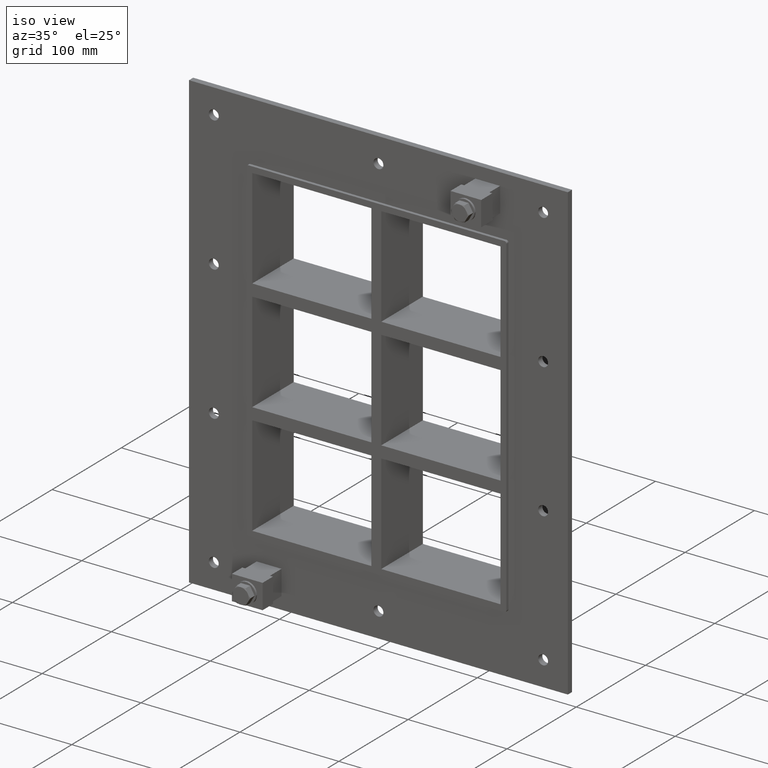
[diagram: clean part render]
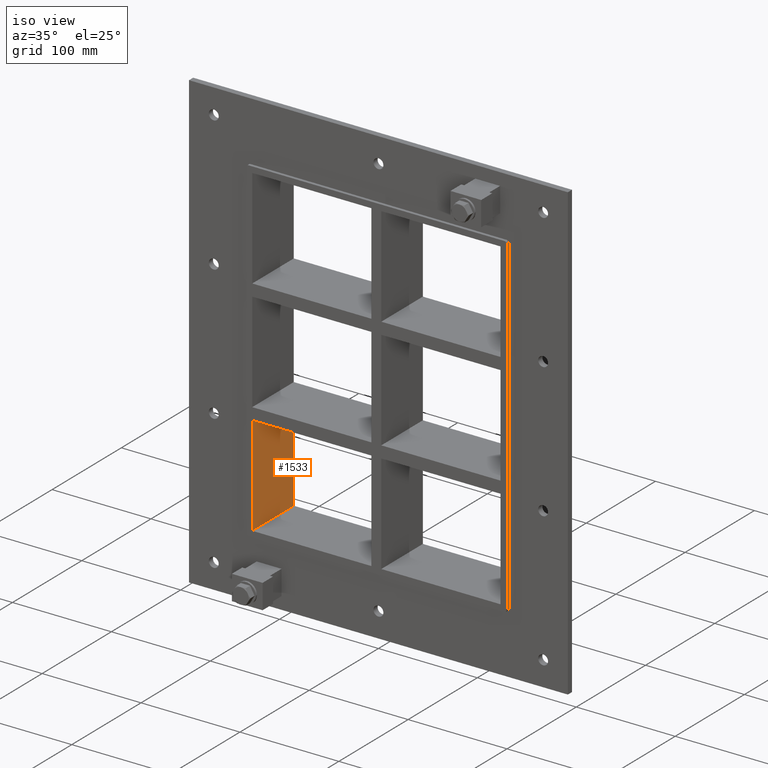
[diagram: same view with one face highlighted and labeled with its STEP entity id]
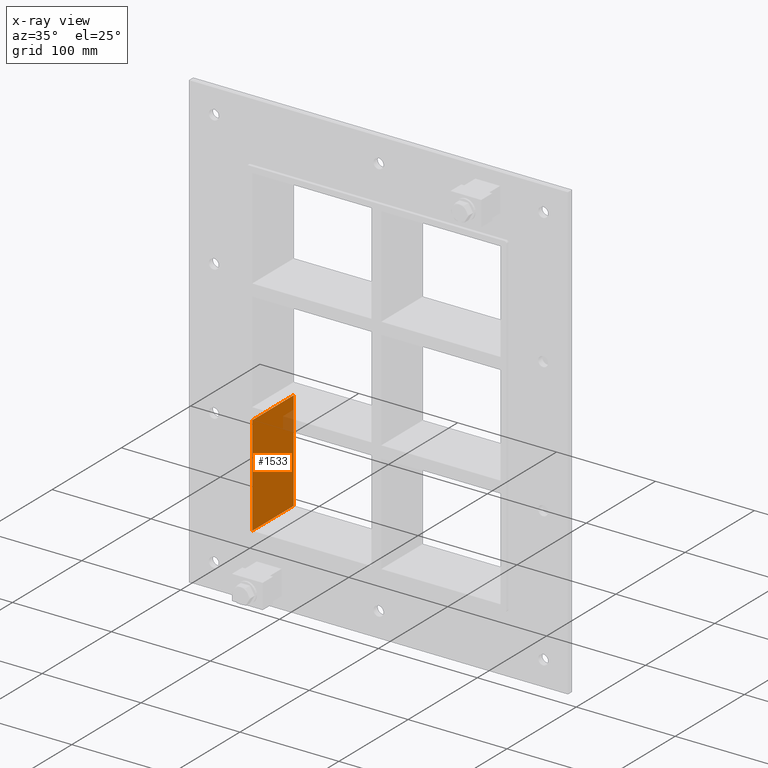
[diagram: x-ray of the same camera — body ghosted, the highlighted face saturated]
A machine part, iso view. The second image highlights one B-rep face of the part: STEP entity #1533.
The next image is the same camera in x-ray: the body ghosted, the highlighted face saturated — about 4% of this face is hidden behind the body in this view.
In plain terms, the highlighted planar face has unit normal (-1, 0, 0).
Its self-contained STEP definition (entity closure, byte-faithful):
#749=CARTESIAN_POINT('',(-125.49999999999875,-3.0,-62.500000000011369));
#750=VERTEX_POINT('',#749);
#757=CARTESIAN_POINT('',(-125.49999999999875,57.0,-62.500000000011369));
#758=VERTEX_POINT('',#757);
#759=CARTESIAN_POINT('',(-125.5,57.000000000000007,-62.500000000011369));
#760=DIRECTION('',(0.0,-1.0,0.0));
#761=VECTOR('',#760,60.000000000000007);
#762=LINE('',#759,#761);
#763=EDGE_CURVE('',#758,#750,#762,.T.);
#985=CARTESIAN_POINT('',(-125.5,57.0,-163.5));
#986=VERTEX_POINT('',#985);
#987=CARTESIAN_POINT('',(-125.5,57.0,-62.500000000011362));
#988=DIRECTION('',(0.0,0.0,-1.0));
#989=VECTOR('',#988,100.99999999998863);
#990=LINE('',#987,#989);
#991=EDGE_CURVE('',#758,#986,#990,.T.);
#1101=CARTESIAN_POINT('',(-125.5,-3.0,-163.5));
#1102=VERTEX_POINT('',#1101);
#1103=CARTESIAN_POINT('',(-125.5,-3.0,-163.5));
#1104=DIRECTION('',(0.0,1.0,0.0));
#1105=VECTOR('',#1104,60.0);
#1106=LINE('',#1103,#1105);
#1107=EDGE_CURVE('',#1102,#986,#1106,.T.);
#1517=CARTESIAN_POINT('',(-125.5,0.0,-163.5));
#1518=DIRECTION('',(-1.0,0.0,0.0));
#1519=DIRECTION('',(0.0,0.0,1.0));
#1520=AXIS2_PLACEMENT_3D('',#1517,#1518,#1519);
#1521=PLANE('',#1520);
#1522=ORIENTED_EDGE('',*,*,#763,.T.);
#1523=CARTESIAN_POINT('',(-125.5,-3.0,-163.5));
#1524=DIRECTION('',(0.0,0.0,1.0));
#1525=VECTOR('',#1524,100.99999999998863);
#1526=LINE('',#1523,#1525);
#1527=EDGE_CURVE('',#1102,#750,#1526,.T.);
#1528=ORIENTED_EDGE('',*,*,#1527,.F.);
#1529=ORIENTED_EDGE('',*,*,#1107,.T.);
#1530=ORIENTED_EDGE('',*,*,#991,.F.);
#1531=EDGE_LOOP('',(#1522,#1528,#1529,#1530));
#1532=FACE_OUTER_BOUND('',#1531,.T.);
#1533=ADVANCED_FACE('',(#1532),#1521,.F.);